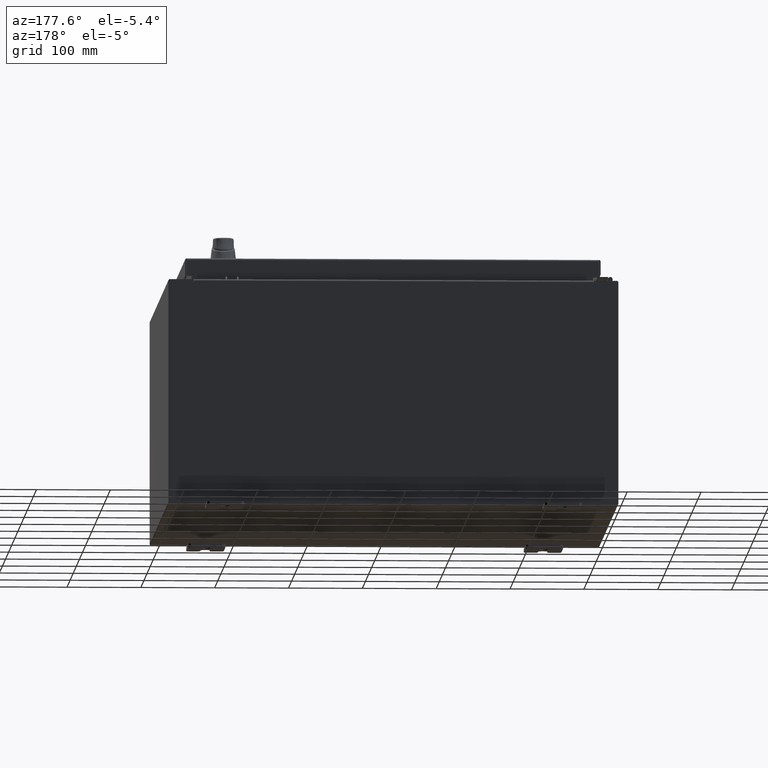
[diagram: clean part render]
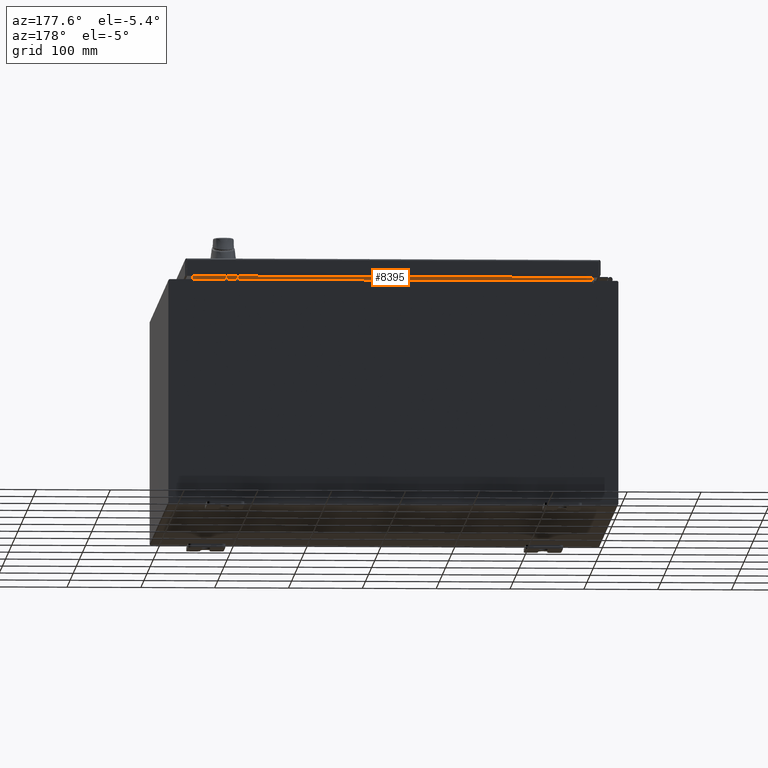
[diagram: same view with one face highlighted and labeled with its STEP entity id]
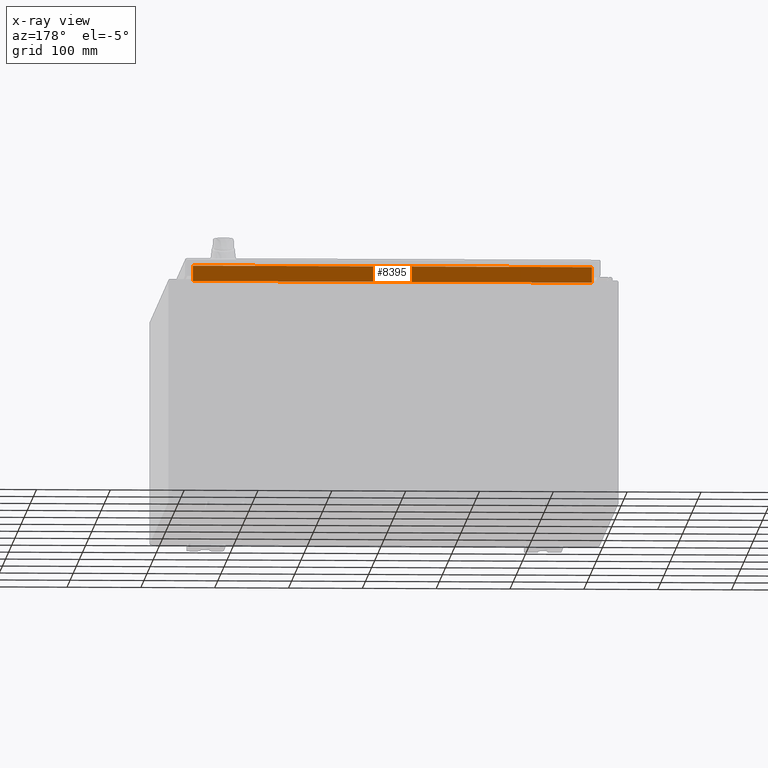
[diagram: x-ray of the same camera — body ghosted, the highlighted face saturated]
A machine part, auxiliary view. The second image highlights one B-rep face of the part: STEP entity #8395.
The next image is the same camera in x-ray: the body ghosted, the highlighted face saturated — about 0% of this face is hidden behind the body in this view.
In plain terms, the highlighted planar face has unit normal (-0, 1, 0).
Its self-contained STEP definition (entity closure, byte-faithful):
#1040 = VECTOR ( 'NONE', #2847, 39.37007874015748100 ) ;
#2847 = DIRECTION ( 'NONE',  ( -0.0000000000000000000, -8.857174949738224200E-016, 1.000000000000000000 ) ) ;
#5356 = CARTESIAN_POINT ( 'NONE',  ( 10.63720000000000200, -1.300300000000000700, 6.837600000000007200 ) ) ;
#6419 = ORIENTED_EDGE ( 'NONE', *, *, #88328, .F. ) ;
#6710 = LINE ( 'NONE', #44501, #75883 ) ;
#8395 = ADVANCED_FACE ( 'NONE', ( #29068 ), #36809, .T. ) ;
#10312 = DIRECTION ( 'NONE',  ( 1.000000000000000000, 1.027280861002618300E-016, 1.027280861002618300E-016 ) ) ;
#11068 = VERTEX_POINT ( 'NONE', #89998 ) ;
#12624 = LINE ( 'NONE', #74131, #55968 ) ;
#22280 = DIRECTION ( 'NONE',  ( -1.000000000000000000, -0.0000000000000000000, -0.0000000000000000000 ) ) ;
#22505 = AXIS2_PLACEMENT_3D ( 'NONE', #79940, #97274, #45456 ) ;
#23706 = VERTEX_POINT ( 'NONE', #30544 ) ;
#29068 = FACE_OUTER_BOUND ( 'NONE', #89831, .T. ) ;
#30544 = CARTESIAN_POINT ( 'NONE',  ( -10.63720000000000400, -1.300299999999999800, 6.013000000000005200 ) ) ;
#36809 = PLANE ( 'NONE',  #22505 ) ;
#44501 = CARTESIAN_POINT ( 'NONE',  ( -10.63720000000000200, -1.300299999999999800, 6.000000000000003600 ) ) ;
#45456 = DIRECTION ( 'NONE',  ( 0.0000000000000000000, -8.857174949738224200E-016, 1.000000000000000000 ) ) ;
#47177 = LINE ( 'NONE', #72214, #1040 ) ;
#50550 = ORIENTED_EDGE ( 'NONE', *, *, #73743, .F. ) ;
#51045 = EDGE_CURVE ( 'NONE', #89792, #93538, #47177, .T. ) ;
#55968 = VECTOR ( 'NONE', #22280, 39.37007874015748100 ) ;
#62663 = VECTOR ( 'NONE', #10312, 39.37007874015748100 ) ;
#65397 = LINE ( 'NONE', #88321, #62663 ) ;
#72214 = CARTESIAN_POINT ( 'NONE',  ( 10.63720000000000200, -1.300300000000000700, 6.925300000000007100 ) ) ;
#73743 = EDGE_CURVE ( 'NONE', #93538, #11068, #12624, .T. ) ;
#74131 = CARTESIAN_POINT ( 'NONE',  ( 10.63719999999999600, -1.300300000000000900, 6.837600000000007200 ) ) ;
#74816 = ORIENTED_EDGE ( 'NONE', *, *, #77652, .F. ) ;
#75883 = VECTOR ( 'NONE', #78992, 39.37007874015748100 ) ;
#77652 = EDGE_CURVE ( 'NONE', #11068, #23706, #6710, .T. ) ;
#78992 = DIRECTION ( 'NONE',  ( -0.0000000000000000000, 8.857174949738214300E-016, -1.000000000000000000 ) ) ;
#79940 = CARTESIAN_POINT ( 'NONE',  ( 1.183117784283575500E-031, -1.300299999999994700, -1.151698458714456500E-015 ) ) ;
#88321 = CARTESIAN_POINT ( 'NONE',  ( -10.63720000000000200, -1.300299999999999800, 6.013000000000003500 ) ) ;
#88328 = EDGE_CURVE ( 'NONE', #23706, #89792, #65397, .T. ) ;
#89792 = VERTEX_POINT ( 'NONE', #105557 ) ;
#89831 = EDGE_LOOP ( 'NONE', ( #74816, #50550, #94056, #6419 ) ) ;
#89998 = CARTESIAN_POINT ( 'NONE',  ( -10.63719999999998800, -1.300300000000000900, 6.837600000000007200 ) ) ;
#93538 = VERTEX_POINT ( 'NONE', #5356 ) ;
#94056 = ORIENTED_EDGE ( 'NONE', *, *, #51045, .F. ) ;
#97274 = DIRECTION ( 'NONE',  ( -9.098806308417904000E-032, 1.000000000000000000, 8.857174949738224200E-016 ) ) ;
#105557 = CARTESIAN_POINT ( 'NONE',  ( 10.63720000000000400, -1.300299999999999800, 6.013000000000005200 ) ) ;